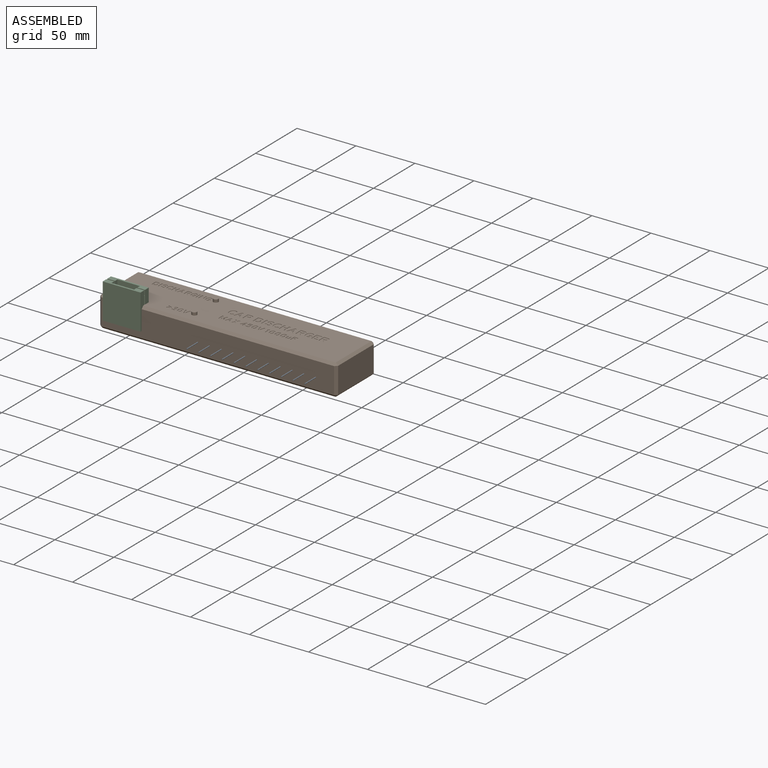
[diagram: assembled view]
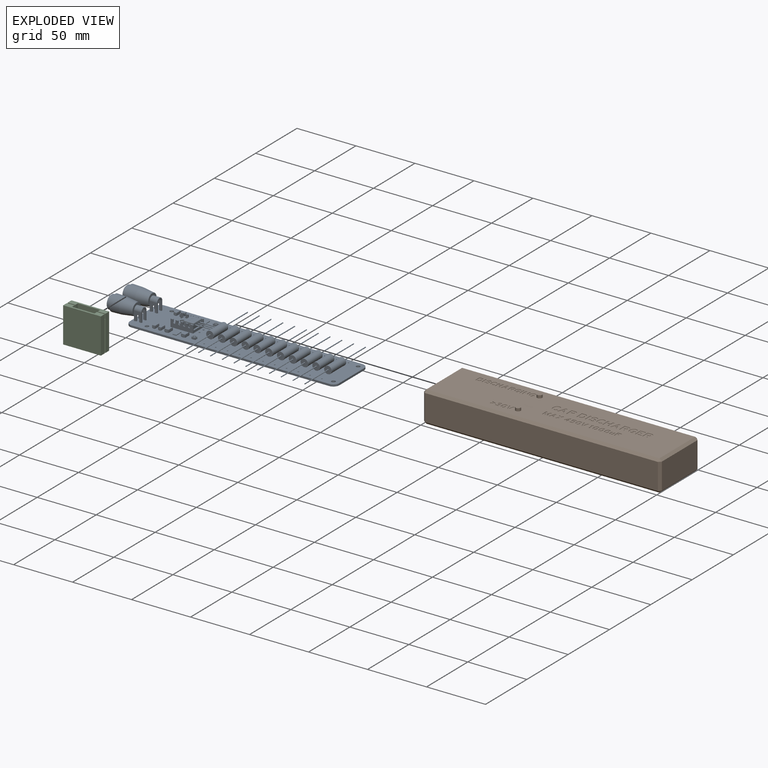
[diagram: exploded view]
GUIDED TOUR — FREECAD ASSEMBLY "1024 Capacitor Discharger Case"

This assembly has 3 components, labeled P0..P2 below (a component is one placed body or linked part; the same part can appear more than once), held together by 0 modeled joints plus 3 derived contact edges. A joint is a constraint between two components; its type names the relative motion it leaves free:
  CONTACT — a derived adjacency edge — the two components touch in the source model (clearance under 2% of the assembly's diagonal); it is measured from the geometry, not a modeled constraint.
Axis/direction vectors are unit vectors and 'through' points are millimeter coordinates, both in the assembly's world frame.

MATES
  1. CONTACT "contact_0_1": P0 <-> P1, contact direction (1.000, 0.000, 0.000) through (173.65, 36.30, 0.00) mm (derived from contact, not a modeled constraint)
  2. CONTACT "contact_0_2": P0 <-> P2, contact direction (0.000, -1.000, 0.000) through (16.01, 5.24, 0.00) mm (derived from contact, not a modeled constraint)
  3. CONTACT "contact_1_2": P1 <-> P2, contact direction (-0.964, -0.242, 0.106) through (16.16, 4.82, 0.00) mm (derived from contact, not a modeled constraint)

ASSEMBLY ORDER
  1. P0 — the base component [order heuristic]
  2. P1 — core [order heuristic]
  3. P2 [order verified]
Order-tag legend:
  [order verified] — this step's position reverses a verified removal order: the component was checked to insert without passing through the ones already placed.
  [order heuristic] — the first 2 components form the assembly's core: parts whose collision-free extraction could not be verified, listed in mate-graph order.

Of the 3 components, 2 carry a construction recipe — the FreeCAD feature program (sketches with constraints, then the solid features that consume them) that regenerates the part from scratch, quoted from this document or from the linked companion document it references; the rest are supplied as boundary geometry only. The tour below walks the components in assembly order: each is shown spotlighted twice — in the assembled view, then in the exploded view, where a leader line traces a displaced component back to its assembled socket (components that stay in place when exploded have no leader line; saturated green if recipe-attached, orange if geometry-only; every other component desaturated gray) — followed by its recipe or geometry summary and the mates that hold it.
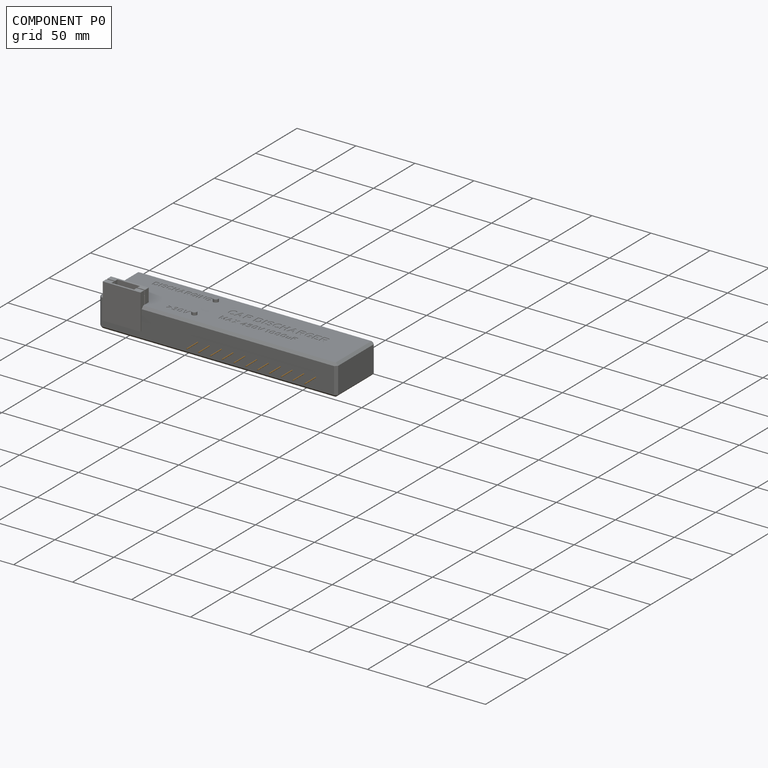
[diagram: component P0 — assembled]
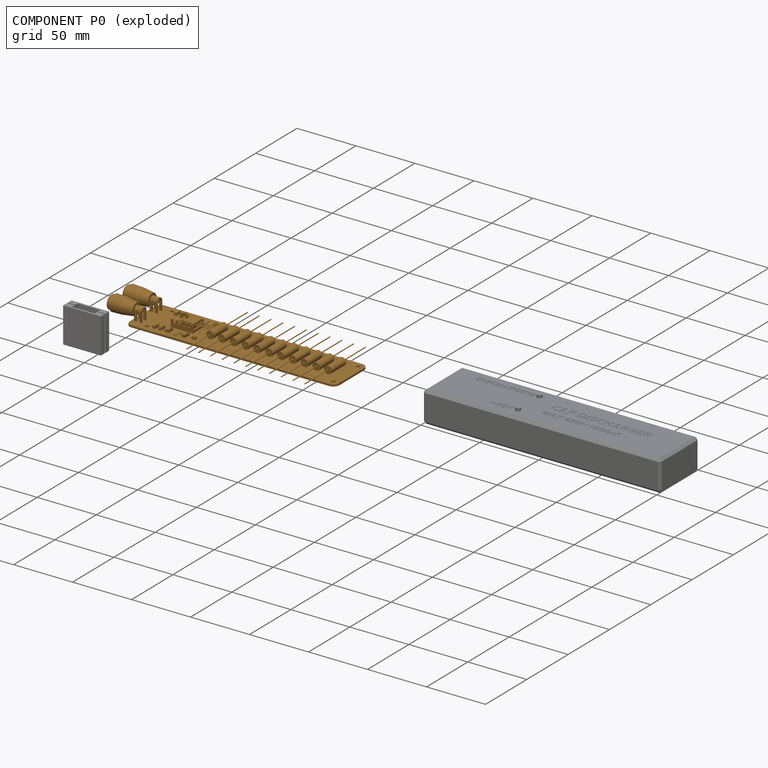
[diagram: component P0 — exploded]
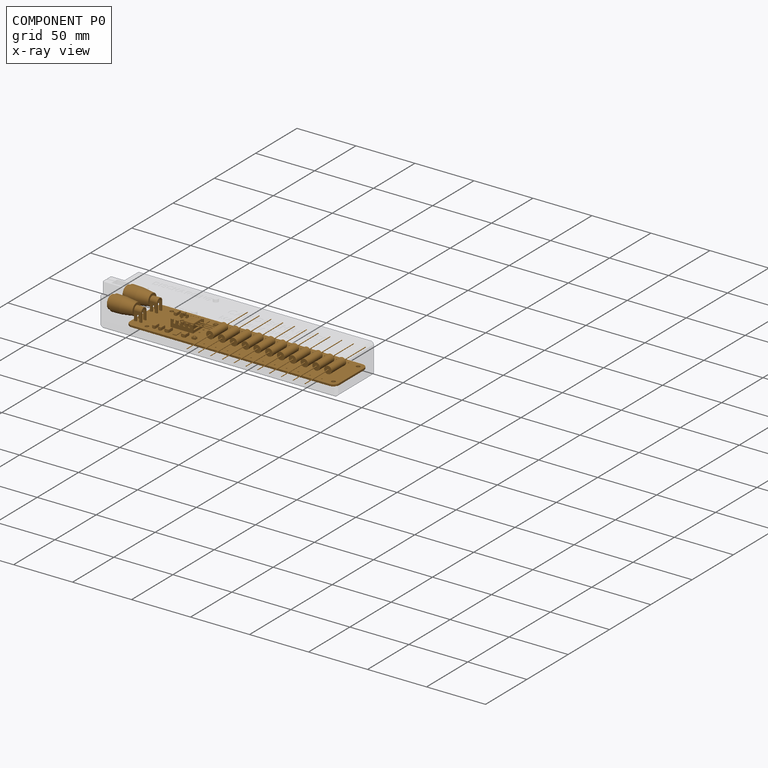
[diagram: component P0 — x-ray view]
COMPONENT P0 — geometry summary ("1024 Capacitor Discharger PCB"; no construction recipe available for this part):
  bounding box: 197.2 x 73.5 x 17.4 mm
  tessellated surface: 129,692 triangles
  volume: 22880 mm^3 (9% of its bounding box)
Held by: resting contact with P1 (derived edge); resting contact with P2 (derived edge).
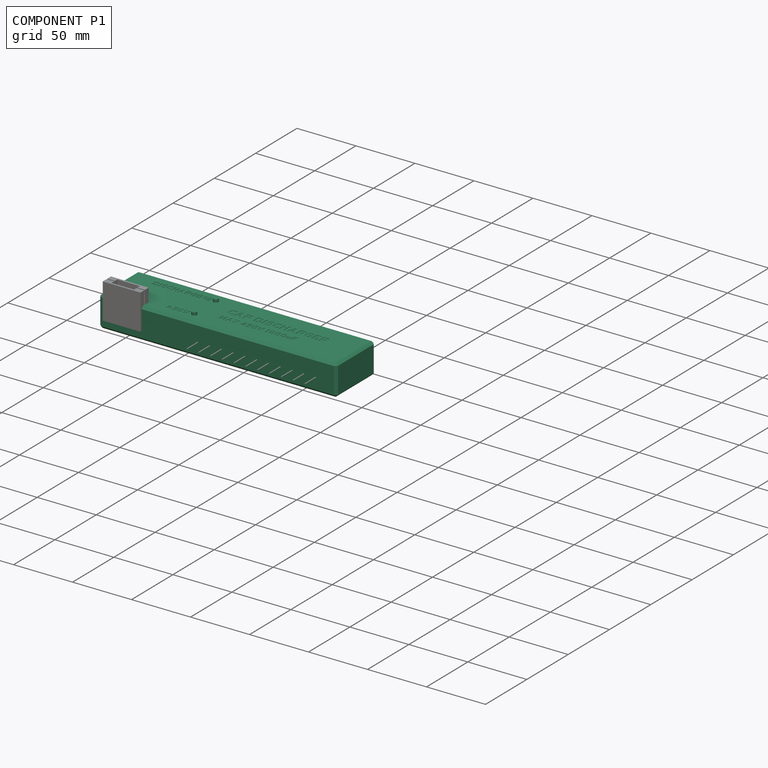
[diagram: component P1 — assembled]
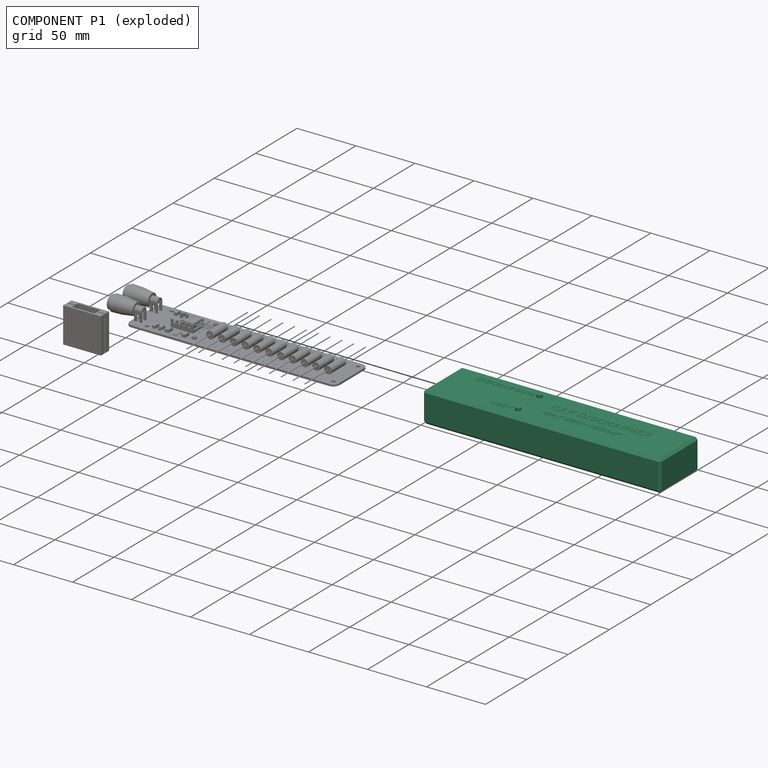
[diagram: component P1 — exploded]
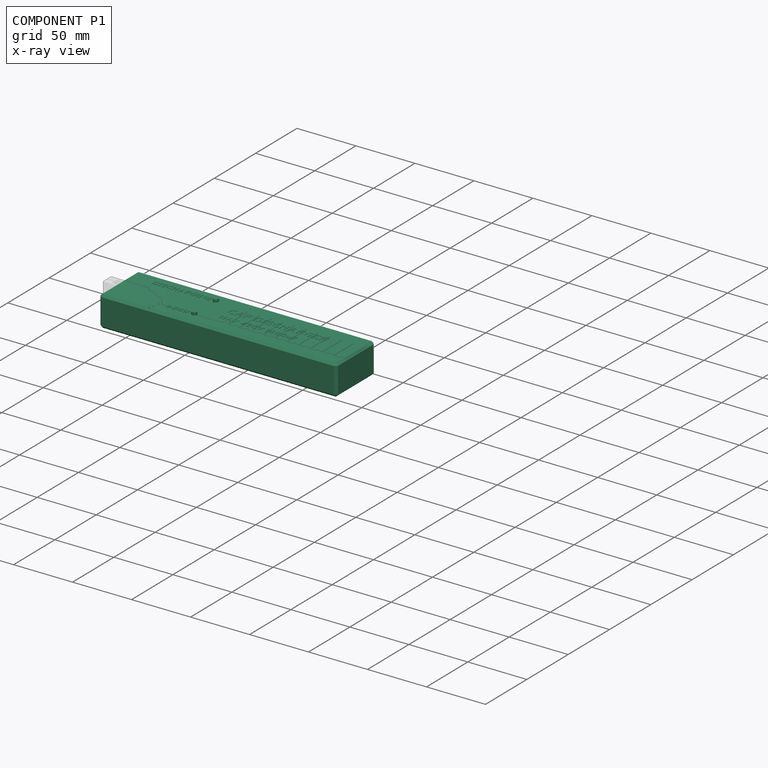
[diagram: component P1 — x-ray view]
COMPONENT P1 — recipe-attached ("Part-Case", modeled in this document).
Held by: resting contact with P0 (derived edge); resting contact with P2 (derived edge).
Construction recipe (the document's own serialized feature program — sketch geometry with constraints, then the solid features built on it; lengths are millimeters unless a unit is written):

FEATURE [Sketcher::SketchObject] Sketch  label="Sketch-CaseBottomSurface"
  AttachmentOffset = pos=(0,0,-7.53) rot=(0,0,1;0rad)
  FullyConstrained = true
  MapMode = 5
  Placement = pos=(0,0,-7.53) rot=(0,0,1;0rad)
  Support = -> [XY_Plane017]
  expr: .AttachmentOffset.Base.z = -<<S>>.case_bot_h
  expr: Constraints[10] = <<S>>.case_y
  expr: Constraints[11] = <<S>>.case_x
  expr: Constraints[8] = <<S>>.case_wallt + <<S>>.con_l
  expr: Constraints[9] = <<S>>.case_wallt + <<S>>.con_b
  sketch-geometry (4):
    g0: LineSegment StartX=-20.4 StartY=43.6 StartZ=0 EndX=181.1 EndY=43.6 EndZ=0
    g1: LineSegment StartX=181.1 StartY=43.6 StartZ=0 EndX=181.1 EndY=-3.6 EndZ=0
    g2: LineSegment StartX=181.1 StartY=-3.6 StartZ=0 EndX=-20.4 EndY=-3.6 EndZ=0
    g3: LineSegment StartX=-20.4 StartY=-3.6 StartZ=0 EndX=-20.4 EndY=43.6 EndZ=0
  constraints (12):
    c: Coincident(g0,g1)
    c: Coincident(g1,g2)
    c: Coincident(g2,g3)
    c: Coincident(g3,g0)
    c: Horizontal(g0)
    c: Horizontal(g2)
    c: Vertical(g1)
    c: Vertical(g3)
    c: DistanceX(g2,g-1) = 20.4
    c: DistanceY(g2,g-1) = 3.6
    c: DistanceY(g3,g3) = 47.2
    c: DistanceX(g2,g2) = 201.5
FEATURE [Sketcher::SketchObject] Sketch001  label="Sketch-CaseBottomWall"
  AttachmentOffset = pos=(0,0,-4.13) rot=(0,0,1;0rad)
  FullyConstrained = true
  MapMode = 5
  Placement = pos=(0,0,-4.13) rot=(0,0,1;0rad)
  Support = -> [XY_Plane017]
  expr: .AttachmentOffset.Base.z = -<<S>>.case_bot_h + <<S>>.case_wallt
  expr: Constraints[10] = <<S>>.case_y
  expr: Constraints[11] = <<S>>.case_x
  expr: Constraints[20] = <<S>>.con_l
  expr: Constraints[21] = <<S>>.con_b
  expr: Constraints[22] = <<S>>.case_y - 2 * <<S>>.case_wallt
  expr: Constraints[23] = <<S>>.case_x - 2 * <<S>>.case_wallt
  expr: Constraints[8] = <<S>>.case_wallt + <<S>>.con_l
  expr: Constraints[9] = <<S>>.case_wallt + <<S>>.con_b
  sketch-geometry (8):
    g0: LineSegment StartX=-20.4 StartY=43.6 StartZ=0 EndX=181.1 EndY=43.6 EndZ=0
    g1: LineSegment StartX=181.1 StartY=43.6 StartZ=0 EndX=181.1 EndY=-3.6 EndZ=0
    g2: LineSegment StartX=181.1 StartY=-3.6 StartZ=0 EndX=-20.4 EndY=-3.6 EndZ=0
    g3: LineSegment StartX=-20.4 StartY=-3.6 StartZ=0 EndX=-20.4 EndY=43.6 EndZ=0
    g4: LineSegment StartX=-17 StartY=-0.2 StartZ=0 EndX=177.7 EndY=-0.2 EndZ=0
    g5: LineSegment StartX=177.7 StartY=-0.2 StartZ=0 EndX=177.7 EndY=40.2 EndZ=0
    g6: LineSegment StartX=177.7 StartY=40.2 StartZ=0 EndX=-17 EndY=40.2 EndZ=0
    g7: LineSegment StartX=-17 StartY=40.2 StartZ=0 EndX=-17 EndY=-0.2 EndZ=0
  constraints (24):
    c: Coincident(g0,g1)
    c: Coincident(g1,g2)
    c: Coincident(g2,g3)
    c: Coincident(g3,g0)
    c: Horizontal(g0)
    c: Horizontal(g2)
    c: Vertical(g1)
    c: Vertical(g3)
    c: DistanceX(g2,g-1) = 20.4
    c: DistanceY(g2,g-1) = 3.6
    c: DistanceY(g3,g3) = 47.2
    c: DistanceX(g2,g2) = 201.5
    c: Coincident(g4,g5)
    c: Coincident(g5,g6)
    c: Coincident(g6,g7)
    c: Coincident(g7,g4)
    c: Horizontal(g4)
    c: Horizontal(g6)
    c: Vertical(g5)
    c: Vertical(g7)
    c: DistanceX(g4,g-1) = 17
    c: DistanceY(g4,g-1) = 0.2
    c: DistanceY(g7,g7) = 40.4
    c: DistanceX(g4,g4) = 194.7
FEATURE [PartDesign::Pad] Pad  label="Pad-CaseBottomSurface"
  Direction = (0,0,1)
  Length = 3.4
  Length2 = 10
  Profile = -> Sketch
  ReferenceAxis = -> Sketch [N_Axis]
  Type = 0
  expr: Length = <<S>>.case_wallt
FEATURE [PartDesign::Pad] Pad001  label="Pad-CaseBottomWall"
  BaseFeature = -> Pad
  Direction = (0,0,1)
  Length = 4.13
  Length2 = 10
  Profile = -> Sketch001
  ReferenceAxis = -> Sketch001 [N_Axis]
  Type = 0
  expr: Length = <<S>>.case_bot_h - <<S>>.case_wallt
FEATURE [Sketcher::SketchObject] Sketch002  label="Sketch-BottomScrewHeadHoles"
  AttachmentOffset = pos=(0,0,-7.53) rot=(0,0,1;0rad)
  FullyConstrained = true
  MapMode = 5
  Placement = pos=(0,0,-7.53) rot=(0,0,1;0rad)
  Support = -> [XY_Plane017]
  expr: .AttachmentOffset.Base.z = -<<S>>.case_bot_h
  expr: Constraints[0] = <<S>>.h1_x
  expr: Constraints[11] = <<S>>.scrw_head_d + <<S>>.scrw_head_clr + 2 * <<S>>.ThreeDP_overext
  expr: Constraints[1] = <<S>>.h1_y
  expr: Constraints[2] = <<S>>.h2_x
  expr: Constraints[3] = <<S>>.h2_y
  expr: Constraints[5] = <<S>>.h4_x
  expr: Constraints[6] = <<S>>.h4_y
  expr: Constraints[8] = <<S>>.h3_x
  expr: Constraints[9] = <<S>>.h3_y
  sketch-geometry (4):
    g0: Circle CenterX=14.5 CenterY=35 CenterZ=0 NormalX=0 NormalY=0 NormalZ=1 AngleXU=0 Radius=3.19
    g1: Circle CenterX=14.5 CenterY=5 CenterZ=0 NormalX=0 NormalY=0 NormalZ=1 AngleXU=0 Radius=3.19
    g2: Circle CenterX=172.5 CenterY=35 CenterZ=0 NormalX=0 NormalY=0 NormalZ=1 AngleXU=0 Radius=3.19
    g3: Circle CenterX=172.5 CenterY=5 CenterZ=0 NormalX=0 NormalY=0 NormalZ=1 AngleXU=0 Radius=3.19
  constraints (12):
    c: DistanceX(g-1,g1) = 14.5
    c: DistanceY(g-1,g1) = 5
    c: DistanceX(g-1,g0) = 14.5
    c: DistanceY(g-1,g0) = 35
    c: Equal(g1,g0)
    c: DistanceX(g-1,g3) = 172.5
    c: DistanceY(g-1,g3) = 5
    c: Equal(g3,g1)
    c: DistanceX(g-1,g2) = 172.5
    c: DistanceY(g-1,g2) = 35
    c: Equal(g2,g1)
    c: Diameter(g1) = 6.38
FEATURE [Sketcher::SketchObject] Sketch003  label="Sketch-BottomSupports"
  AttachmentOffset = pos=(0,0,-4.13) rot=(0,0,1;0rad)
  FullyConstrained = true
  MapMode = 5
  Placement = pos=(0,0,-4.13) rot=(0,0,1;0rad)
  Support = -> [XY_Plane017]
  expr: .AttachmentOffset.Base.z = -<<S>>.case_bot_h + <<S>>.case_wallt
  expr: Constraints[0] = <<S>>.h1_x
  expr: Constraints[11] = 2 * <<S>>.hsi_wallt + <<S>>.hsi_hole_dia
  expr: Constraints[1] = <<S>>.h1_y
  expr: Constraints[2] = <<S>>.h2_x
  expr: Constraints[3] = <<S>>.h2_y
  expr: Constraints[5] = <<S>>.h4_x
  expr: Constraints[6] = <<S>>.h4_y
  expr: Constraints[8] = <<S>>.h3_x
  expr: Constraints[9] = <<S>>.h3_y
  sketch-geometry (4):
    g0: Circle CenterX=14.5 CenterY=35 CenterZ=0 NormalX=0 NormalY=0 NormalZ=1 AngleXU=0 Radius=4.14
    g1: Circle CenterX=14.5 CenterY=5 CenterZ=0 NormalX=0 NormalY=0 NormalZ=1 AngleXU=0 Radius=4.14
    g2: Circle CenterX=172.5 CenterY=35 CenterZ=0 NormalX=0 NormalY=0 NormalZ=1 AngleXU=0 Radius=4.14
    g3: Circle CenterX=172.5 CenterY=5 CenterZ=0 NormalX=0 NormalY=0 NormalZ=1 AngleXU=0 Radius=4.14
  constraints (12):
    c: DistanceX(g-1,g1) = 14.5
    c: DistanceY(g-1,g1) = 5
    c: DistanceX(g-1,g0) = 14.5
    c: DistanceY(g-1,g0) = 35
    c: Equal(g1,g0)
    c: DistanceX(g-1,g3) = 172.5
    c: DistanceY(g-1,g3) = 5
    c: Equal(g3,g1)
    c: DistanceX(g-1,g2) = 172.5
    c: DistanceY(g-1,g2) = 35
    c: Equal(g2,g1)
    c: Diameter(g1) = 8.28
FEATURE [PartDesign::Pad] Pad002  label="Pad-BottomSupports"
  BaseFeature = -> Pad001
  Direction = (0,0,1)
  Length = 4.13
  Length2 = 10
  Profile = -> Sketch003
  ReferenceAxis = -> Sketch003 [N_Axis]
  Type = 0
  expr: Length = <<S>>.case_bot_h - <<S>>.case_wallt
FEATURE [Sketcher::SketchObject] Sketch004  label="Sketch-BottomScrewHoles"
  AttachmentOffset = pos=(0,0,-3.2) rot=(0,0,1;0rad)
  FullyConstrained = true
  MapMode = 5
  Placement = pos=(0,0,-3.2) rot=(0,0,1;0rad)
  Support = -> [XY_Plane017]
  expr: .AttachmentOffset.Base.z = -<<S>>.case_bot_h + <<S>>.scrw_head_cs + <<S>>.scrw_head_l + <<S>>.ThreeDP_layerh
  expr: Constraints[0] = <<S>>.h1_x
  expr: Constraints[11] = <<S>>.scrw_shaft_d + <<S>>.scrw_clr + 2 * <<S>>.ThreeDP_overext
  expr: Constraints[1] = <<S>>.h1_y
  expr: Constraints[2] = <<S>>.h2_x
  expr: Constraints[3] = <<S>>.h2_y
  expr: Constraints[5] = <<S>>.h4_x
  expr: Constraints[6] = <<S>>.h4_y
  expr: Constraints[8] = <<S>>.h3_x
  expr: Constraints[9] = <<S>>.h3_y
  sketch-geometry (4):
    g0: Circle CenterX=14.5 CenterY=35 CenterZ=0 NormalX=0 NormalY=0 NormalZ=1 AngleXU=0 Radius=1.865
    g1: Circle CenterX=14.5 CenterY=5 CenterZ=0 NormalX=0 NormalY=0 NormalZ=1 AngleXU=0 Radius=1.865
    g2: Circle CenterX=172.5 CenterY=35 CenterZ=0 NormalX=0 NormalY=0 NormalZ=1 AngleXU=0 Radius=1.865
    g3: Circle CenterX=172.5 CenterY=5 CenterZ=0 NormalX=0 NormalY=0 NormalZ=1 AngleXU=0 Radius=1.865
  constraints (12):
    c: DistanceX(g-1,g1) = 14.5
    c: DistanceY(g-1,g1) = 5
    c: DistanceX(g-1,g0) = 14.5
    c: DistanceY(g-1,g0) = 35
    c: Equal(g1,g0)
    c: DistanceX(g-1,g3) = 172.5
    c: DistanceY(g-1,g3) = 5
    c: Equal(g3,g1)
    c: DistanceX(g-1,g2) = 172.5
    c: DistanceY(g-1,g2) = 35
    c: Equal(g2,g1)
    c: Diameter(g1) = 3.73
FEATURE [PartDesign::Pocket] Pocket  label="Pocket-BottomScrewHeadHoles"
  BaseFeature = -> Pad002
  Direction = (0,0,-1)
  Length = 3.93
  Length2 = 5
  Profile = -> Sketch002
  ReferenceAxis = -> Sketch002 [N_Axis]
  Reversed = true
  Type = 0
  expr: Length = <<S>>.scrw_head_cs + <<S>>.scrw_head_l
FEATURE [PartDesign::Pocket] Pocket001  label="Pocket-BottomScrewHoles"
  BaseFeature = -> Pocket
  Direction = (0,0,-1)
  Length = -3.2
  Length2 = 5
  Profile = -> Sketch004
  ReferenceAxis = -> Sketch004 [N_Axis]
  Type = 0
  expr: Length = -<<S>>.case_bot_h + <<S>>.scrw_head_cs + <<S>>.scrw_head_l + <<S>>.ThreeDP_layerh
FEATURE [Sketcher::SketchObject] Sketch005  label="Sketch-CaseBottomOverlap"
  FullyConstrained = true
  MapMode = 5
  Support = -> [XY_Plane017]
  expr: Constraints[10] = <<S>>.case_y - 2 * <<S>>.case_wallt
  expr: Constraints[11] = <<S>>.case_x - 2 * <<S>>.case_wallt
  expr: Constraints[20] = <<S>>.con_l + <<S>>.case_wallt / 2 - <<S>>.ThreeDP_overext
  expr: Constraints[21] = <<S>>.con_b + <<S>>.case_wallt / 2 - <<S>>.ThreeDP_overext
  expr: Constraints[22] = <<S>>.case_y - <<S>>.case_wallt - 2 * <<S>>.ThreeDP_overext
  expr: Constraints[23] = <<S>>.case_x - <<S>>.case_wallt - 2 * <<S>>.ThreeDP_overext
  expr: Constraints[8] = <<S>>.con_l
  expr: Constraints[9] = <<S>>.con_b
  sketch-geometry (8):
    g0: LineSegment StartX=-17 StartY=40.2 StartZ=0 EndX=177.7 EndY=40.2 EndZ=0
    g1: LineSegment StartX=177.7 StartY=40.2 StartZ=0 EndX=177.7 EndY=-0.2 EndZ=0
    g2: LineSegment StartX=177.7 StartY=-0.2 StartZ=0 EndX=-17 EndY=-0.2 EndZ=0
    g3: LineSegment StartX=-17 StartY=-0.2 StartZ=0 EndX=-17 EndY=40.2 EndZ=0
    g4: LineSegment StartX=-18.55 StartY=-1.75 StartZ=0 EndX=179.25 EndY=-1.75 EndZ=0
    g5: LineSegment StartX=179.25 StartY=-1.75 StartZ=0 EndX=179.25 EndY=41.75 EndZ=0
    g6: LineSegment StartX=179.25 StartY=41.75 StartZ=0 EndX=-18.55 EndY=41.75 EndZ=0
    g7: LineSegment StartX=-18.55 StartY=41.75 StartZ=0 EndX=-18.55 EndY=-1.75 EndZ=0
  constraints (24):
    c: Coincident(g0,g1)
    c: Coincident(g1,g2)
    c: Coincident(g2,g3)
    c: Coincident(g3,g0)
    c: Horizontal(g0)
    c: Horizontal(g2)
    c: Vertical(g1)
    c: Vertical(g3)
    c: DistanceX(g2,g-1) = 17
    c: DistanceY(g2,g-1) = 0.2
    c: DistanceY(g3,g3) = 40.4
    c: DistanceX(g2,g2) = 194.7
    c: Coincident(g4,g5)
    c: Coincident(g5,g6)
    c: Coincident(g6,g7)
    c: Coincident(g7,g4)
    c: Horizontal(g4)
    c: Horizontal(g6)
    c: Vertical(g5)
    c: Vertical(g7)
    c: DistanceX(g4,g-1) = 18.55
    c: DistanceY(g4,g-1) = 1.75
    c: DistanceY(g7,g7) = 43.5
    c: DistanceX(g4,g4) = 197.8
FEATURE [PartDesign::Pad] Pad003  label="Pad-CaseBottomOverlap"
  BaseFeature = -> Pocket001
  Direction = (0,0,1)
  Length = 2
  Length2 = 10
  Profile = -> Sketch005
  ReferenceAxis = -> Sketch005 [N_Axis]
  Type = 0
  expr: Length = <<S>>.case_overlap - <<S>>.ThreeDP_layerh
FEATURE [Sketcher::SketchObject] Sketch006  label="Sketch-CaseTopWall"
  FullyConstrained = true
  MapMode = 5
  Support = -> [XY_Plane018]
  expr: Constraints[10] = <<S>>.case_y
  expr: Constraints[11] = <<S>>.case_x
  expr: Constraints[20] = <<S>>.con_l
  expr: Constraints[21] = <<S>>.con_b
  expr: Constraints[22] = <<S>>.case_y - 2 * <<S>>.case_wallt
  expr: Constraints[23] = <<S>>.case_x - 2 * <<S>>.case_wallt
  expr: Constraints[8] = <<S>>.case_wallt + <<S>>.con_l
  expr: Constraints[9] = <<S>>.case_wallt + <<S>>.con_b
  sketch-geometry (8):
    g0: LineSegment StartX=-20.4 StartY=43.6 StartZ=0 EndX=181.1 EndY=43.6 EndZ=0
    g1: LineSegment StartX=181.1 StartY=43.6 StartZ=0 EndX=181.1 EndY=-3.6 EndZ=0
    g2: LineSegment StartX=181.1 StartY=-3.6 StartZ=0 EndX=-20.4 EndY=-3.6 EndZ=0
    g3: LineSegment StartX=-20.4 StartY=-3.6 StartZ=0 EndX=-20.4 EndY=43.6 EndZ=0
    g4: LineSegment StartX=-17 StartY=-0.2 StartZ=0 EndX=177.7 EndY=-0.2 EndZ=0
    g5: LineSegment StartX=177.7 StartY=-0.2 StartZ=0 EndX=177.7 EndY=40.2 EndZ=0
    g6: LineSegment StartX=177.7 StartY=40.2 StartZ=0 EndX=-17 EndY=40.2 EndZ=0
    g7: LineSegment StartX=-17 StartY=40.2 StartZ=0 EndX=-17 EndY=-0.2 EndZ=0
  constraints (24):
    c: Coincident(g0,g1)
    c: Coincident(g1,g2)
    c: Coincident(g2,g3)
    c: Coincident(g3,g0)
    c: Horizontal(g0)
    c: Horizontal(g2)
    c: Vertical(g1)
    c: Vertical(g3)
    c: DistanceX(g2,g-1) = 20.4
    c: DistanceY(g2,g-1) = 3.6
    c: DistanceY(g3,g3) = 47.2
    c: DistanceX(g2,g2) = 201.5
    c: Coincident(g4,g5)
    c: Coincident(g5,g6)
    c: Coincident(g6,g7)
    c: Coincident(g7,g4)
    c: Horizontal(g4)
    c: Horizontal(g6)
    c: Vertical(g5)
    c: Vertical(g7)
    c: DistanceX(g4,g-1) = 17
    c: DistanceY(g4,g-1) = 0.2
    c: DistanceY(g7,g7) = 40.4
    c: DistanceX(g4,g4) = 194.7
FEATURE [PartDesign::Pad] Pad004  label="Pad-CaseTopWall"
  Direction = (0,0,1)
  Length = 15.35
  Length2 = 10
  Profile = -> Sketch006
  ReferenceAxis = -> Sketch006 [N_Axis]
  Type = 0
  expr: Length = <<S>>.case_top_h - <<S>>.case_wallt
FEATURE [Sketcher::SketchObject] Sketch007  label="Sketch-CaseTopOverlap"
  FullyConstrained = true
  MapMode = 5
  Support = -> [XY_Plane018]
  expr: Constraints[10] = <<S>>.case_y - 2 * <<S>>.case_wallt
  expr: Constraints[11] = <<S>>.case_x - 2 * <<S>>.case_wallt
  expr: Constraints[20] = <<S>>.con_l + <<S>>.case_wallt / 2 + <<S>>.ThreeDP_overext
  expr: Constraints[21] = <<S>>.con_b + <<S>>.case_wallt / 2 + <<S>>.ThreeDP_overext
  expr: Constraints[22] = <<S>>.case_y - <<S>>.case_wallt + 2 * <<S>>.ThreeDP_overext
  expr: Constraints[23] = <<S>>.case_x - <<S>>.case_wallt + 2 * <<S>>.ThreeDP_overext
  expr: Constraints[8] = <<S>>.con_l
  expr: Constraints[9] = <<S>>.con_b
  sketch-geometry (8):
    g0: LineSegment StartX=-17 StartY=40.2 StartZ=0 EndX=177.7 EndY=40.2 EndZ=0
    g1: LineSegment StartX=177.7 StartY=40.2 StartZ=0 EndX=177.7 EndY=-0.2 EndZ=0
    g2: LineSegment StartX=177.7 StartY=-0.2 StartZ=0 EndX=-17 EndY=-0.2 EndZ=0
    g3: LineSegment StartX=-17 StartY=-0.2 StartZ=0 EndX=-17 EndY=40.2 EndZ=0
    g4: LineSegment StartX=-18.85 StartY=-2.05 StartZ=0 EndX=179.55 EndY=-2.05 EndZ=0
    g5: LineSegment StartX=179.55 StartY=-2.05 StartZ=0 EndX=179.55 EndY=42.05 EndZ=0
    g6: LineSegment StartX=179.55 StartY=42.05 StartZ=0 EndX=-18.85 EndY=42.05 EndZ=0
    g7: LineSegment StartX=-18.85 StartY=42.05 StartZ=0 EndX=-18.85 EndY=-2.05 EndZ=0
  constraints (24):
    c: Coincident(g0,g1)
    c: Coincident(g1,g2)
    c: Coincident(g2,g3)
    c: Coincident(g3,g0)
    c: Horizontal(g0)
    c: Horizontal(g2)
    c: Vertical(g1)
    c: Vertical(g3)
    c: DistanceX(g2,g-1) = 17
    c: DistanceY(g2,g-1) = 0.2
    c: DistanceY(g3,g3) = 40.4
    c: DistanceX(g2,g2) = 194.7
    c: Coincident(g4,g5)
    c: Coincident(g5,g6)
    c: Coincident(g6,g7)
    c: Coincident(g7,g4)
    c: Horizontal(g4)
    c: Horizontal(g6)
    c: Vertical(g5)
    c: Vertical(g7)
    c: DistanceX(g4,g-1) = 18.85
    c: DistanceY(g4,g-1) = 2.05
    c: DistanceY(g7,g7) = 44.1
    c: DistanceX(g4,g4) = 198.4
FEATURE [PartDesign::Pocket] Pocket002  label="Pocket-CaseTopOverlap"
  BaseFeature = -> Pad004
  Direction = (0,0,-1)
  Length = 2.4
  Length2 = 5
  Profile = -> Sketch007
  ReferenceAxis = -> Sketch007 [N_Axis]
  Reversed = true
  Type = 0
  expr: Length = <<S>>.case_overlap
FEATURE [Sketcher::SketchObject] Sketch008  label="Sketch-CaseTopSurface"
  AttachmentOffset = pos=(0,0,15.35) rot=(0,0,1;0rad)
  FullyConstrained = true
  MapMode = 5
  Placement = pos=(0,0,15.35) rot=(0,0,1;0rad)
  Support = -> [XY_Plane018]
  expr: .AttachmentOffset.Base.z = <<S>>.case_top_h - <<S>>.case_wallt
  expr: Constraints[10] = <<S>>.case_y
  expr: Constraints[11] = <<S>>.case_x
  expr: Constraints[8] = <<S>>.case_wallt + <<S>>.con_l
  expr: Constraints[9] = <<S>>.case_wallt + <<S>>.con_b
  sketch-geometry (4):
    g0: LineSegment StartX=-20.4 StartY=43.6 StartZ=0 EndX=181.1 EndY=43.6 EndZ=0
    g1: LineSegment StartX=181.1 StartY=43.6 StartZ=0 EndX=181.1 EndY=-3.6 EndZ=0
    g2: LineSegment StartX=181.1 StartY=-3.6 StartZ=0 EndX=-20.4 EndY=-3.6 EndZ=0
    g3: LineSegment StartX=-20.4 StartY=-3.6 StartZ=0 EndX=-20.4 EndY=43.6 EndZ=0
  constraints (12):
    c: Coincident(g0,g1)
    c: Coincident(g1,g2)
    c: Coincident(g2,g3)
    c: Coincident(g3,g0)
    c: Horizontal(g0)
    c: Horizontal(g2)
    c: Vertical(g1)
    c: Vertical(g3)
    c: DistanceX(g2,g-1) = 20.4
    c: DistanceY(g2,g-1) = 3.6
    c: DistanceY(g3,g3) = 47.2
    c: DistanceX(g2,g2) = 201.5
FEATURE [PartDesign::Pad] Pad005  label="Pad-CaseTopSurface"
  BaseFeature = -> Pocket002
  Direction = (0,0,1)
  Length = 3.4
  Length2 = 10
  Profile = -> Sketch008
  ReferenceAxis = -> Sketch008 [N_Axis]
  Type = 0
  expr: Length = <<S>>.case_wallt
FEATURE [Sketcher::SketchObject] Sketch009  label="Sketch-TopSupports"
  AttachmentOffset = pos=(0,0,1.6) rot=(0,0,1;0rad)
  FullyConstrained = true
  MapMode = 5
  Placement = pos=(0,0,1.6) rot=(0,0,1;0rad)
  Support = -> [XY_Plane018]
  expr: .AttachmentOffset.Base.z = <<S>>.pcb_z
  expr: Constraints[0] = <<S>>.h1_x
  expr: Constraints[11] = 2 * <<S>>.hsi_wallt + <<S>>.hsi_hole_dia
  expr: Constraints[1] = <<S>>.h1_y
  expr: Constraints[2] = <<S>>.h2_x
  expr: Constraints[3] = <<S>>.h2_y
  expr: Constraints[5] = <<S>>.h4_x
  expr: Constraints[6] = <<S>>.h4_y
  expr: Constraints[8] = <<S>>.h3_x
  expr: Constraints[9] = <<S>>.h3_y
  sketch-geometry (4):
    g0: Circle CenterX=14.5 CenterY=35 CenterZ=0 NormalX=0 NormalY=0 NormalZ=1 AngleXU=0 Radius=4.14
    g1: Circle CenterX=14.5 CenterY=5 CenterZ=0 NormalX=0 NormalY=0 NormalZ=1 AngleXU=0 Radius=4.14
    g2: Circle CenterX=172.5 CenterY=35 CenterZ=0 NormalX=0 NormalY=0 NormalZ=1 AngleXU=0 Radius=4.14
    g3: Circle CenterX=172.5 CenterY=5 CenterZ=0 NormalX=0 NormalY=0 NormalZ=1 AngleXU=0 Radius=4.14
  constraints (12):
    c: DistanceX(g-1,g1) = 14.5
    c: DistanceY(g-1,g1) = 5
    c: DistanceX(g-1,g0) = 14.5
    c: DistanceY(g-1,g0) = 35
    c: Equal(g1,g0)
    c: DistanceX(g-1,g3) = 172.5
    c: DistanceY(g-1,g3) = 5
    c: Equal(g3,g1)
    c: DistanceX(g-1,g2) = 172.5
    c: DistanceY(g-1,g2) = 35
    c: Equal(g2,g1)
    c: Diameter(g1) = 8.28
FEATURE [PartDesign::Pad] Pad006  label="Pad-TopSupports"
  BaseFeature = -> Pad005
  Direction = (0,0,1)
  Length = 13.75
  Length2 = 10
  Profile = -> Sketch009
  ReferenceAxis = -> Sketch009 [N_Axis]
  Type = 0
  expr: Length = <<S>>.case_top_h - <<S>>.case_wallt - <<S>>.pcb_z
FEATURE [Sketcher::SketchObject] Sketch010  label="Sketch-HSIHoles"
  AttachmentOffset = pos=(0,0,1.6) rot=(0,0,1;0rad)
  FullyConstrained = true
  MapMode = 5
  Placement = pos=(0,0,1.6) rot=(0,0,1;0rad)
  Support = -> [XY_Plane018]
  expr: .AttachmentOffset.Base.z = <<S>>.pcb_z
  expr: Constraints[0] = <<S>>.h1_x
  expr: Constraints[11] = <<S>>.hsi_hole_dia + <<S>>.ThreeDP_overext
  expr: Constraints[1] = <<S>>.h1_y
  expr: Constraints[2] = <<S>>.h2_x
  expr: Constraints[3] = <<S>>.h2_y
  expr: Constraints[5] = <<S>>.h4_x
  expr: Constraints[6] = <<S>>.h4_y
  expr: Constraints[8] = <<S>>.h3_x
  expr: Constraints[9] = <<S>>.h3_y
  sketch-geometry (4):
    g0: Circle CenterX=14.5 CenterY=35 CenterZ=0 NormalX=0 NormalY=0 NormalZ=1 AngleXU=0 Radius=2.215
    g1: Circle CenterX=14.5 CenterY=5 CenterZ=0 NormalX=0 NormalY=0 NormalZ=1 AngleXU=0 Radius=2.215
    g2: Circle CenterX=172.5 CenterY=35 CenterZ=0 NormalX=0 NormalY=0 NormalZ=1 AngleXU=0 Radius=2.215
    g3: Circle CenterX=172.5 CenterY=5 CenterZ=0 NormalX=0 NormalY=0 NormalZ=1 AngleXU=0 Radius=2.215
  constraints (12):
    c: DistanceX(g-1,g1) = 14.5
    c: DistanceY(g-1,g1) = 5
    c: DistanceX(g-1,g0) = 14.5
    c: DistanceY(g-1,g0) = 35
    c: Equal(g1,g0)
    c: DistanceX(g-1,g3) = 172.5
    c: DistanceY(g-1,g3) = 5
    c: Equal(g3,g1)
    c: DistanceX(g-1,g2) = 172.5
    c: DistanceY(g-1,g2) = 35
    c: Equal(g2,g1)
    c: Diameter(g1) = 4.43
FEATURE [PartDesign::Pocket] Pocket003  label="Pocket-HSIHoles"
  BaseFeature = -> Pad006
  Direction = (0,0,-1)
  Length = 8.01
  Length2 = 5
  Profile = -> Sketch010
  ReferenceAxis = -> Sketch010 [N_Axis]
  Reversed = true
  Type = 0
  expr: Length = <<S>>.hsi_hole_depth
FEATURE [Sketcher::SketchObject] Sketch011  label="Sketch-ConnectorHolesLeft"
  AttachmentOffset = pos=(0,0,-20.4) rot=(0,0,1;0rad)
  FullyConstrained = true
  MapMode = 5
  Placement = pos=(-20.4,4.5e-15,-4.5e-15) rot=(0.57735,0.57735,0.57735;2.0944rad)
  Support = -> [YZ_Plane018]
  expr: .AttachmentOffset.Base.z = -<<S>>.con_l - <<S>>.case_wallt
  expr: Constraints[2] = 11.5 mm + 2 * <<S>>.ThreeDP_overext
  sketch-geometry (2):
    g0: Circle CenterX=29.525 CenterY=7.6 CenterZ=0 NormalX=0 NormalY=0 NormalZ=1 AngleXU=0 Radius=5.9
    g1: Circle CenterX=10.475 CenterY=7.6 CenterZ=0 NormalX=0 NormalY=0 NormalZ=1 AngleXU=0 Radius=5.9
  constraints (6):
    c: DistanceX(g-1,g1) = 10.475
    c: DistanceY(g-1,g1) = 7.6
    c: Diameter(g1) = 11.8
    c: DistanceX(g-1,g0) = 29.525
    c: DistanceY(g-1,g0) = 7.6
    c: Equal(g0,g1)
FEATURE [PartDesign::Pocket] Pocket004  label="Pocket-ConnectorHolesLeft"
  BaseFeature = -> Pocket003
  Direction = (-1,2e-16,-3e-16)
  Length = 3.4
  Length2 = 5
  Profile = -> Sketch011
  ReferenceAxis = -> Sketch011 [N_Axis]
  Reversed = true
  Type = 0
  expr: Length = <<S>>.case_wallt
FEATURE [Sketcher::SketchObject] Sketch012  label="Sketch-LEDLightPipeHoles"
  AttachmentOffset = pos=(0,0,18.75) rot=(0,0,1;0rad)
  FullyConstrained = true
  MapMode = 5
  Placement = pos=(0,0,18.75) rot=(0,0,1;0rad)
  Support = -> [XY_Plane018]
  expr: .AttachmentOffset.Base.z = <<S>>.case_top_h
  expr: Constraints[2] = 0.156 in + 2 * <<S>>.ThreeDP_overext
  sketch-geometry (2):
    g0: Circle CenterX=53.25 CenterY=7 CenterZ=0 NormalX=0 NormalY=0 NormalZ=1 AngleXU=0 Radius=2.1312
    g1: Circle CenterX=53.25 CenterY=33 CenterZ=0 NormalX=0 NormalY=0 NormalZ=1 AngleXU=0 Radius=2.1312
  constraints (6):
    c: DistanceX(g-1,g0) = 53.25
    c: DistanceY(g-1,g0) = 7
    c: Diameter(g0) = 4.2624
    c: DistanceX(g-1,g1) = 53.25
    c: DistanceY(g-1,g1) = 33
    c: Equal(g0,g1)
FEATURE [PartDesign::Pocket] Pocket005  label="Pocket-LEDLightPipeHoles"
  BaseFeature = -> Pocket004
  Direction = (0,0,-1)
  Length = 3.4
  Length2 = 5
  Profile = -> Sketch012
  ReferenceAxis = -> Sketch012 [N_Axis]
  Type = 0
  expr: Length = <<S>>.case_wallt
FEATURE [Sketcher::SketchObject] Sketch013  label="Sketch-LEDLightPipe1"
  AttachmentOffset = pos=(0,0,21.15) rot=(0,0,1;0rad)
  FullyConstrained = true
  MapMode = 5
  Placement = pos=(0,0,21.15) rot=(0,0,1;0rad)
  Support = -> [XY_Plane019]
  expr: .AttachmentOffset.Base.z = <<S>>.case_top_h + 2.4 mm
  expr: Constraints[2] = 0.156 in + 2 * <<S>>.ThreeDP_overext
  sketch-geometry (1):
    g0: Circle CenterX=53.25 CenterY=7 CenterZ=0 NormalX=0 NormalY=0 NormalZ=1 AngleXU=0 Radius=2.1312
  constraints (3):
    c: DistanceX(g-1,g0) = 53.25
    c: DistanceY(g-1,g0) = 7
    c: Diameter(g0) = 4.2624
FEATURE [Sketcher::SketchObject] Sketch014  label="Sketch-LEDLightPipe2"
  AttachmentOffset = pos=(0,0,21.15) rot=(0,0,1;0rad)
  FullyConstrained = true
  MapMode = 5
  Placement = pos=(0,0,21.15) rot=(0,0,1;0rad)
  Support = -> [XY_Plane020]
  expr: .AttachmentOffset.Base.z = <<S>>.case_top_h + 2.4 mm
  expr: Constraints[2] = 0.156 in + 2 * <<S>>.ThreeDP_overext
  sketch-geometry (1):
    g0: Circle CenterX=53.25 CenterY=33 CenterZ=0 NormalX=0 NormalY=0 NormalZ=1 AngleXU=0 Radius=2.1312
  constraints (3):
    c: DistanceX(g-1,g0) = 53.25
    c: DistanceY(g-1,g0) = 33
    c: Diameter(g0) = 4.2624
FEATURE [PartDesign::Pad] Pad007  label="Pad-LEDLightPipe1"
  Direction = (0,0,1)
  Length = 15.1
  Length2 = 10
  Profile = -> Sketch013
  ReferenceAxis = -> Sketch013 [N_Axis]
  Reversed = true
  Type = 0
  expr: Length = <<S>>.led_lp_h + 2.4 mm
FEATURE [PartDesign::Body] Body002  label="Body-LEDLightPipe1"
  Group = -> [Sketch013,Pad007]
  Origin = -> Origin019
  Tip = -> Pad007
FEATURE [PartDesign::Pad] Pad008  label="Pad-LEDLightPipe2"
  Direction = (0,0,1)
  Length = 15.1
  Length2 = 10
  Profile = -> Sketch014
  ReferenceAxis = -> Sketch014 [N_Axis]
  Reversed = true
  Type = 0
  expr: Length = <<S>>.led_lp_h + 2.4 mm
FEATURE [PartDesign::Body] Body003  label="Body-LEDLightPipe2"
  Group = -> [Sketch014,Pad008]
  Origin = -> Origin020
  Tip = -> Pad008
FEATURE [Part::Part2DObjectPython] ShapeString  label="ShapeString-Project Title"  # Draft 2D object (typed FeaturePython)
  FontFile = <path> Capacitor Discharger/FreeCAD Project/1024 Capacitor Discharger Case/Overpass-ExtraBold.otf
  MakeFace = true
  Placement = pos=(70,21.25,18.75) rot=(0,0,1;0rad)
  Size = 8
  String = CAP DISCHARGER
  Tracking = 0
  expr: .Placement.Base.x = <<S>>.prtit_x
  expr: .Placement.Base.y = <<S>>.prtit_y
  expr: .Placement.Base.z = <<S>>.case_top_h
  expr: Size = <<S>>.prtit_fontsz
  expr: String = <<S>>.prtit_text
FEATURE [Part::Part2DObjectPython] ShapeString001  label="ShapeString-Subtitle"  # Draft 2D object (typed FeaturePython)
  FontFile = <path> Capacitor Discharger/FreeCAD Project/1024 Capacitor Discharger Case/Overpass-ExtraBold.otf
  MakeFace = true
  Placement = pos=(70,11.25,18.75) rot=(0,0,1;0rad)
  Size = 6
  String = MAX 450V 1000uF
  Tracking = 0
  expr: .Placement.Base.x = <<S>>.subt_x
  expr: .Placement.Base.y = <<S>>.subt_y
  expr: .Placement.Base.z = <<S>>.case_top_h
  expr: Size = <<S>>.subt_fontsz
  expr: String = <<S>>.subt_text
FEATURE [Part::Part2DObjectPython] ShapeString002  label="ShapeString-GT30V"  # Draft 2D object (typed FeaturePython)
  FontFile = <path> Capacitor Discharger/FreeCAD Project/1024 Capacitor Discharger Case/Overpass-ExtraBold.otf
  MakeFace = true
  Placement = pos=(30,4.5,18.75) rot=(0,0,1;0rad)
  Size = 6
  String = >30V
  Tracking = 0
  expr: .Placement.Base.x = <<S>>.v30_x
  expr: .Placement.Base.y = <<S>>.v30_y
  expr: .Placement.Base.z = <<S>>.case_top_h
  expr: Size = <<S>>.v30_fontsz
  expr: String = <<S>>.v30_text
FEATURE [Part::Part2DObjectPython] ShapeString003  label="ShapeString-Discharging"  # Draft 2D object (typed FeaturePython)
  FontFile = <path> Capacitor Discharger/FreeCAD Project/1024 Capacitor Discharger Case/Overpass-ExtraBold.otf
  MakeFace = true
  Placement = pos=(0,30.5,18.75) rot=(0,0,1;0rad)
  Size = 6
  String = DISCHARGING
  Tracking = 0
  expr: .Placement.Base.x = <<S>>.disch_x
  expr: .Placement.Base.y = <<S>>.disch_y
  expr: .Placement.Base.z = <<S>>.case_top_h
  expr: Size = <<S>>.disch_fontsz
  expr: String = <<S>>.disch_text
FEATURE [PartDesign::Pocket] Pocket006  label="Pocket-ProjectTitle"
  BaseFeature = -> Pocket005
  Direction = (0,0,-1)
  Length = 0.4
  Length2 = 5
  Profile = -> ShapeString
  ReferenceAxis = -> ShapeString [N_Axis]
  Type = 0
  expr: Length = <<S>>.text_embd
FEATURE [PartDesign::Pocket] Pocket007  label="Pocket-Subtitle"
  BaseFeature = -> Pocket006
  Direction = (0,0,-1)
  Length = 0.4
  Length2 = 5
  Profile = -> ShapeString001
  ReferenceAxis = -> ShapeString001 [N_Axis]
  Type = 0
  expr: Length = <<S>>.text_embd
FEATURE [PartDesign::Pocket] Pocket008  label="Pocket-GT30V"
  BaseFeature = -> Pocket007
  Direction = (0,0,-1)
  Length = 0.4
  Length2 = 5
  Profile = -> ShapeString002
  ReferenceAxis = -> ShapeString002 [N_Axis]
  Type = 0
  expr: Length = <<S>>.text_embd
FEATURE [PartDesign::Pocket] Pocket009  label="Pocket-Discharging"
  BaseFeature = -> Pocket008
  Direction = (0,0,-1)
  Length = 0.4
  Length2 = 5
  Profile = -> ShapeString003
  ReferenceAxis = -> ShapeString003 [N_Axis]
  Type = 0
  expr: Length = <<S>>.text_embd
FEATURE [Sketcher::SketchObject] Sketch015  label="Sketch-ConnectorHolesLeft1"
  AttachmentOffset = pos=(0,0,-20.4) rot=(0,0,1;0rad)
  FullyConstrained = true
  MapMode = 5
  Placement = pos=(-20.4,4.5e-15,-4.5e-15) rot=(0.57735,0.57735,0.57735;2.0944rad)
  Support = -> [YZ_Plane017]
  expr: .AttachmentOffset.Base.z = -<<S>>.con_l - <<S>>.case_wallt
  expr: Constraints[2] = 11.5 mm + 2 * <<S>>.ThreeDP_overext
  sketch-geometry (2):
    g0: Circle CenterX=29.525 CenterY=7.6 CenterZ=0 NormalX=0 NormalY=0 NormalZ=1 AngleXU=0 Radius=5.9
    g1: Circle CenterX=10.475 CenterY=7.6 CenterZ=0 NormalX=0 NormalY=0 NormalZ=1 AngleXU=0 Radius=5.9
  constraints (6):
    c: DistanceX(g-1,g1) = 10.475
    c: DistanceY(g-1,g1) = 7.6
    c: Diameter(g1) = 11.8
    c: DistanceX(g-1,g0) = 29.525
    c: DistanceY(g-1,g0) = 7.6
    c: Equal(g0,g1)
FEATURE [PartDesign::Pocket] Pocket010  label="Pocket-ConnectorHolesLeft1"
  BaseFeature = -> Pad003
  Direction = (-1,2e-16,-3e-16)
  Length = 3.4
  Length2 = 5
  Profile = -> Sketch015
  ReferenceAxis = -> Sketch015 [N_Axis]
  Reversed = true
  Type = 0
  expr: Length = <<S>>.case_wallt
FEATURE [PartDesign::Chamfer] Chamfer  label="Chamfer-Top"
  Angle = 45
  Base = -> Pocket009 [Edge20,Edge23,Edge22,Edge5,Edge48,Edge36,Edge10,Edge37,Edge19,Edge2,Edge18,Edge1,Edge38,Edge43,Edge39,Edge41,Edge439,Edge441,Edge1228,Edge1236]
  BaseFeature = -> Pocket009
  ChamferType = 0
  FlipDirection = false
  Size = 2
  Size2 = 1
  SupportTransform = false
  UseAllEdges = false
  expr: Size = <<S>>.edge_cham
FEATURE [PartDesign::Body] Body001  label="Body-CaseTop"
  Group = -> [Sketch006,Pad004,Sketch007,Pocket002,Sketch008,Pad005,Sketch009,Pad006,Sketch010,Pocket003,Sketch011,Pocket004,Sketch012,Pocket005,ShapeString,ShapeString001,ShapeString002,ShapeString003,Pocket006,Pocket007,Pocket008,Pocket009,Chamfer]
  Origin = -> Origin018
  Tip = -> Chamfer
FEATURE [PartDesign::Chamfer] Chamfer001  label="Chamfer-Bottom"
  Angle = 45
  Base = -> Pocket010 [Edge20,Edge5,Edge37,Edge11,Edge8,Edge22,Edge9,Edge38,Edge17,Edge2,Edge40,Edge3,Edge1,Edge16,Edge42,Edge6,Edge64,Edge72,Edge66,Edge74,Edge62,Edge69,Edge63,Edge70]
  BaseFeature = -> Pocket010
  ChamferType = 0
  FlipDirection = false
  Size = 2
  Size2 = 1
  SupportTransform = false
  UseAllEdges = false
  expr: Size = <<S>>.edge_cham
FEATURE [PartDesign::Body] Body  label="Body-CaseBottom"
  Group = -> [Sketch,Sketch001,Pad,Pad001,Sketch003,Pad002,Sketch002,Pocket,Sketch004,Pocket001,Sketch005,Pad003,Sketch015,Pocket010,Chamfer001]
  Origin = -> Origin017
  Tip = -> Chamfer001
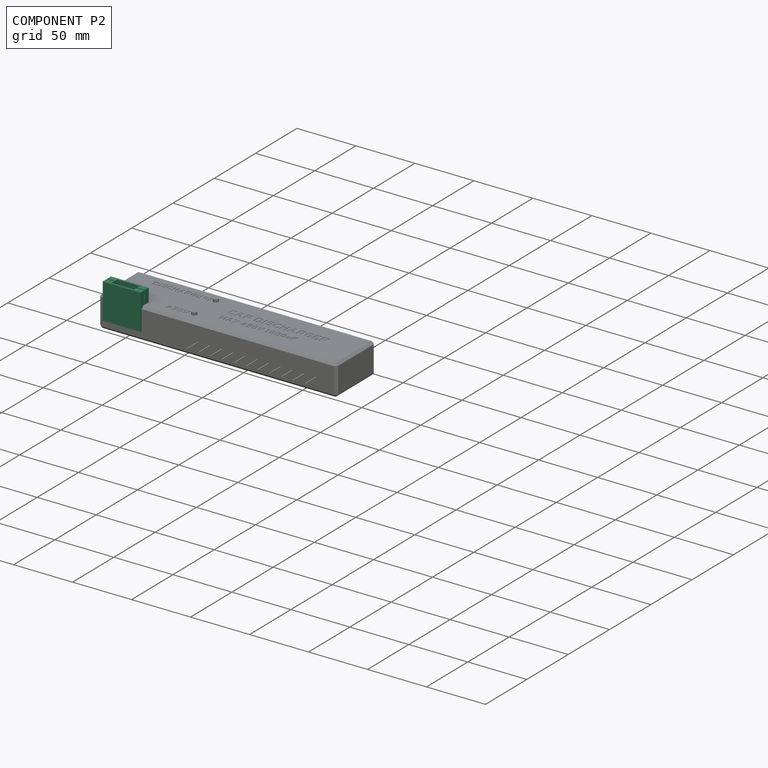
[diagram: component P2 — assembled]
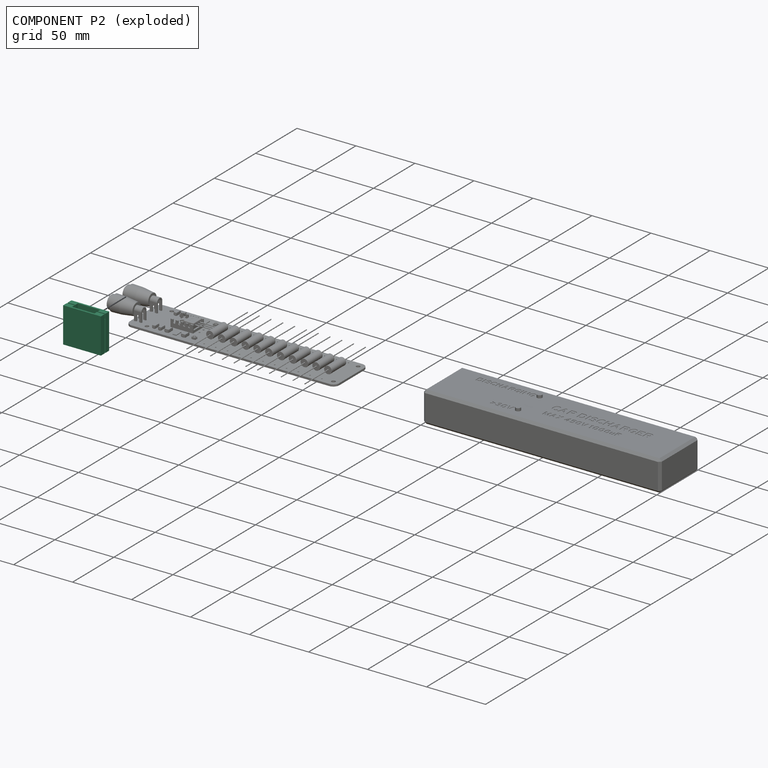
[diagram: component P2 — exploded]
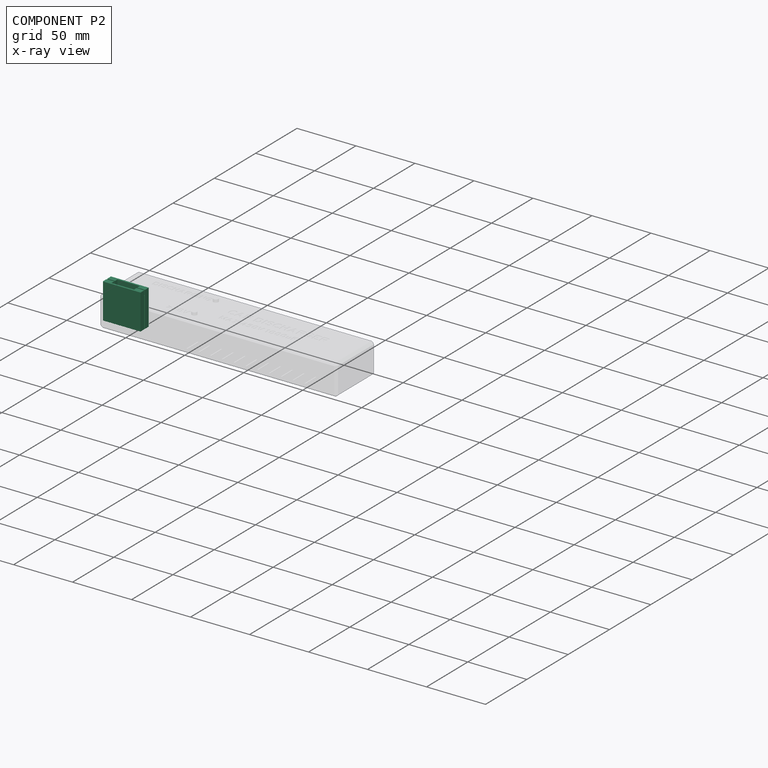
[diagram: component P2 — x-ray view]
COMPONENT P2 — recipe-attached ("Part-ResistorBender", modeled in this document).
Held by: resting contact with P0 (derived edge); resting contact with P1 (derived edge).
Construction recipe (the document's own serialized feature program — sketch geometry with constraints, then the solid features built on it; lengths are millimeters unless a unit is written):

FEATURE [Sketcher::SketchObject] Sketch016  label="Sketch-MainBody"
  FullyConstrained = true
  MapMode = 5
  Support = -> [XY_Plane022]
  sketch-geometry (8):
    g0: LineSegment StartX=-16 StartY=5 StartZ=0 EndX=16 EndY=5 EndZ=0
    g1: LineSegment StartX=16 StartY=-5 StartZ=0 EndX=-16 EndY=-5 EndZ=0
    g2: ArcOfCircle CenterX=16 CenterY=0 CenterZ=0 NormalX=0 NormalY=0 NormalZ=1 AngleXU=0 Radius=0.5 StartAngle=1.5708 EndAngle=4.71239
    g3: LineSegment StartX=16 StartY=0.5 StartZ=0 EndX=16 EndY=5 EndZ=0
    g4: LineSegment StartX=16 StartY=-0.5 StartZ=0 EndX=16 EndY=-5 EndZ=0
    g5: ArcOfCircle CenterX=-16 CenterY=0 CenterZ=0 NormalX=0 NormalY=0 NormalZ=1 AngleXU=0 Radius=0.5 StartAngle=4.71239 EndAngle=7.85398
    g6: LineSegment StartX=-16 StartY=0.5 StartZ=0 EndX=-16 EndY=5 EndZ=0
    g7: LineSegment StartX=-16 StartY=-0.5 StartZ=0 EndX=-16 EndY=-5 EndZ=0
  constraints (25):
    c: Horizontal(g0)
    c: Horizontal(g1)
    c: DistanceX(g0,g0) = 32
    c: DistanceY(g1,g0) = 10
    c: Symmetric(g0,g1,g-1)
    c: PointOnObject(g2,g-1)
    c: Vertical(g0,g2)
    c: Vertical(g2,g2)
    c: Vertical(g2,g2)
    c: Vertical(g2,g1)
    c: Diameter(g2) = 1
    c: Coincident(g3,g2)
    c: Coincident(g3,g0)
    c: Coincident(g4,g2)
    c: Coincident(g4,g1)
    c: PointOnObject(g5,g-1)
    c: Vertical(g0,g5)
    c: Vertical(g5,g5)
    c: Vertical(g5,g5)
    c: Vertical(g5,g1)
    c: Diameter(g5) = 1
    c: Coincident(g6,g5)
    c: Coincident(g6,g0)
    c: Coincident(g7,g5)
    c: Coincident(g7,g1)
FEATURE [PartDesign::Pad] Pad009  label="Pad-MainBody"
  Direction = (0,0,1)
  Length = 30
  Length2 = 10
  Profile = -> Sketch016
  ReferenceAxis = -> Sketch016 [N_Axis]
  Type = 0
FEATURE [Sketcher::SketchObject] Sketch017  label="Sketch-ResistorCutout"
  FullyConstrained = true
  MapMode = 5
  Placement = pos=(0,0,0) rot=(0.57735,0.57735,0.57735;2.0944rad)
  Support = -> [YZ_Plane022]
  sketch-geometry (4):
    g0: ArcOfCircle CenterX=0 CenterY=26 CenterZ=0 NormalX=0 NormalY=0 NormalZ=1 AngleXU=0 Radius=3.5 StartAngle=3.14159 EndAngle=6.28319
    g1: LineSegment StartX=-3.5 StartY=26 StartZ=0 EndX=-3.5 EndY=30 EndZ=0
    g2: LineSegment StartX=3.5 StartY=26 StartZ=0 EndX=3.5 EndY=30 EndZ=0
    g3: LineSegment StartX=-3.5 StartY=30 StartZ=0 EndX=3.5 EndY=30 EndZ=0
  constraints (13):
    c: PointOnObject(g0,g-2)
    c: Horizontal(g0,g0)
    c: Horizontal(g0,g0)
    c: Diameter(g0) = 7
    c: DistanceY(g-1,g0) = 26
    c: Coincident(g1,g0)
    c: Vertical(g1)
    c: Coincident(g2,g0)
    c: Vertical(g2)
    c: Coincident(g3,g1)
    c: Coincident(g3,g2)
    c: Horizontal(g3)
    c: DistanceY(g2,g2) = 4
FEATURE [PartDesign::Pocket] Pocket011  label="Pocket-ResistorCutout"
  BaseFeature = -> Pad009
  Direction = (-1,2e-16,-3e-16)
  Length = 19
  Length2 = 5
  Midplane = true
  Profile = -> Sketch017
  ReferenceAxis = -> Sketch017 [N_Axis]
  Type = 0
FEATURE [Sketcher::SketchObject] Sketch018  label="Sketch-LeadsCutoutTop"
  FullyConstrained = true
  MapMode = 5
  Placement = pos=(0,0,0) rot=(0.57735,0.57735,0.57735;2.0944rad)
  Support = -> [YZ_Plane022]
  sketch-geometry (4):
    g0: ArcOfCircle CenterX=0 CenterY=26 CenterZ=0 NormalX=0 NormalY=0 NormalZ=1 AngleXU=0 Radius=0.5 StartAngle=3.14159 EndAngle=6.28319
    g1: LineSegment StartX=-0.5 StartY=26 StartZ=0 EndX=-0.5 EndY=30 EndZ=0
    g2: LineSegment StartX=-0.5 StartY=30 StartZ=0 EndX=0.5 EndY=30 EndZ=0
    g3: LineSegment StartX=0.5 StartY=30 StartZ=0 EndX=0.5 EndY=26 EndZ=0
  constraints (13):
    c: PointOnObject(g0,g-2)
    c: Horizontal(g0,g0)
    c: Horizontal(g0,g0)
    c: DistanceY(g-1,g0) = 26
    c: Coincident(g1,g0)
    c: Vertical(g1)
    c: Coincident(g2,g1)
    c: Horizontal(g2)
    c: Coincident(g3,g2)
    c: Coincident(g3,g0)
    c: Vertical(g3)
    c: DistanceY(g3,g3) = 4
    c: Diameter(g0) = 1
FEATURE [PartDesign::Pocket] Pocket012  label="Pocket-LeadsCutoutTop"
  BaseFeature = -> Pocket011
  Direction = (-1,2e-16,-3e-16)
  Length = 32
  Length2 = 5
  Midplane = true
  Profile = -> Sketch018
  ReferenceAxis = -> Sketch018 [N_Axis]
  Type = 0
FEATURE [PartDesign::Body] Body004  label="Body-ResistorBender"
  Group = -> [Sketch016,Pad009,Sketch017,Pocket011,Sketch018,Pocket012]
  Origin = -> Origin022
  Tip = -> Pocket012
PROVENANCE & LICENSES
Assembly and component geometry: a FreeCAD (.FCStd) document from a public repository crawl; components, placements and joints were extracted with FreeCAD and each solid tessellated.
Construction recipes: the document's own serialized feature recipes (and, for linked parts, the recipes of companion documents from the same project).
License: as declared in the source repository (recorded in the dataset sidecar).
Joints: native FreeCAD joints and A2plus constraints are mapped to standard mate types; edges marked 'derived from contact' connect touching components and are measured from the geometry, not modeled.
Verification: 2 of this assembly's 3 components carry a construction recipe (2 from this document itself); the rest are geometry-only. Every component's tessellation passed the extraction mesh gates (mesh-volume checksum against the B-rep where available, bounding-box inflation <= 2%).
Renders: orthographic iso camera (az 35 / el 25); the floor grid conveys scale (grid pitch printed in each image; no ruler). In the exploded view each component is displaced by its stored offset vector: the offsets alone carry the explosion direction (mate normal/axis signs are not orientation cues and do not encode it), and separation distances are assigned per mate-chain, not proportionally to assembly-order depth.
